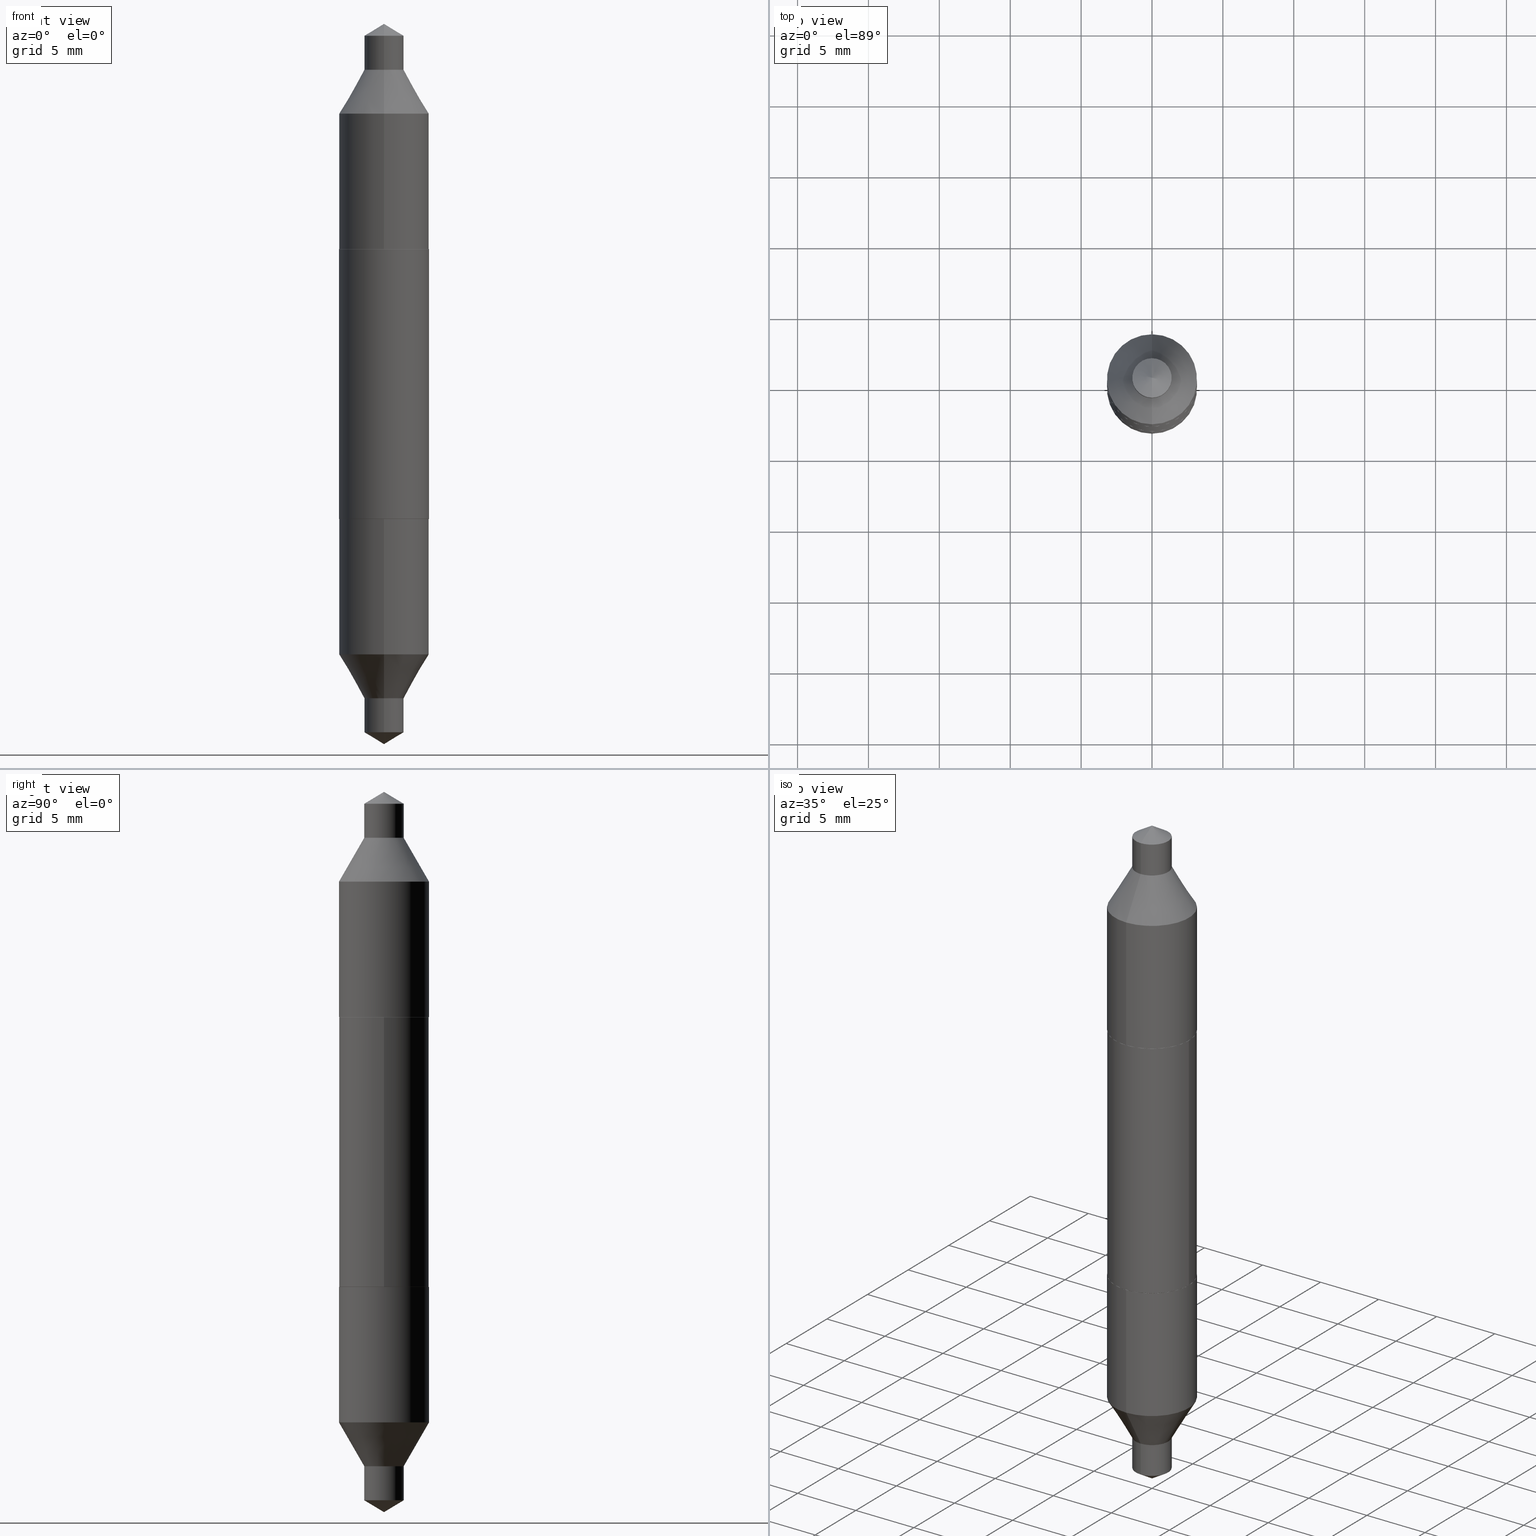
[diagram: canonical four-view strip — front | top / right | iso, engineering-drawing reading convention]
A machine part, canonical four-view strip (front | top / right | iso — engineering-drawing reading convention). The complete STEP part file that produces these views, byte-faithful:
ISO-10303-21;
HEADER;
FILE_DESCRIPTION (( 'STEP AP203' ),
    '1' );
FILE_NAME ('57009.STEP',
    '2024-04-19T15:17:24',
    ( '' ),
    ( '' ),
    'SwSTEP 2.0',
    'SolidWorks 2023',
    '' );
FILE_SCHEMA (( 'CONFIG_CONTROL_DESIGN' ));
ENDSEC;

DATA;
#1 = ORIENTED_EDGE ( 'NONE', *, *, #379, .F. ) ;
#2 = ORIENTED_EDGE ( 'NONE', *, *, #545, .F. ) ;
#3 = ADVANCED_FACE ( 'NONE', ( #700 ), #195, .T. ) ;
#4 = ORIENTED_EDGE ( 'NONE', *, *, #68, .T. ) ;
#5 = CARTESIAN_POINT ( 'NONE',  ( -2.443245373833270130E-29, 3.494665420520928324E-15, 1.000000000000000000 ) ) ;
#6 = FACE_OUTER_BOUND ( 'NONE', #276, .T. ) ;
#7 = ORIENTED_EDGE ( 'NONE', *, *, #518, .T. ) ;
#8 = CARTESIAN_POINT ( 'NONE',  ( 3.886668764607838145E-16, 0.05469999999999868717, -0.3750000000000001665 ) ) ;
#9 = ADVANCED_FACE ( 'NONE', ( #316 ), #477, .T. ) ;
#10 = VERTEX_POINT ( 'NONE', #272 ) ;
#11 = DIRECTION ( 'NONE',  ( -6.982962677686265922E-15, -1.000000000000000000, 3.535573257325071460E-15 ) ) ;
#12 = ADVANCED_FACE ( 'NONE', ( #6 ), #217, .T. ) ;
#13 = ORIENTED_EDGE ( 'NONE', *, *, #361, .F. ) ;
#14 = FACE_OUTER_BOUND ( 'NONE', #151, .T. ) ;
#15 = AXIS2_PLACEMENT_3D ( 'NONE', #144, #688, #307 ) ;
#16 = FACE_OUTER_BOUND ( 'NONE', #498, .T. ) ;
#17 = ORIENTED_EDGE ( 'NONE', *, *, #612, .T. ) ;
#18 = DIRECTION ( 'NONE',  ( -2.445468806185136597E-29, 3.491481338843145583E-15, 1.000000000000000000 ) ) ;
#19 = CARTESIAN_POINT ( 'NONE',  ( 3.886668764607960911E-16, 0.05469999999999695245, -0.8726000000000001533 ) ) ;
#20 = EDGE_CURVE ( 'NONE', #697, #322, #476, .T. ) ;
#21 = APPROVAL_STATUS ( 'not_yet_approved' ) ;
#22 = DIRECTION ( 'NONE',  ( 6.982962677686265922E-15, 1.000000000000000000, -3.478745012132013433E-15 ) ) ;
#23 = CIRCLE ( 'NONE', #514, 0.1250000000000000555 ) ;
#24 = CARTESIAN_POINT ( 'NONE',  ( -2.359827127416466351E-29, 3.384268155191049887E-15, 0.9671329241391926068 ) ) ;
#25 = AXIS2_PLACEMENT_3D ( 'NONE', #162, #264, #536 ) ;
#26 = FACE_OUTER_BOUND ( 'NONE', #651, .T. ) ;
#27 = CYLINDRICAL_SURFACE ( 'NONE', #648, 0.1250000000000000278 ) ;
#28 = DIRECTION ( 'NONE',  ( -6.982962677686266711E-15, -1.000000000000000000, 3.278217592397114284E-15 ) ) ;
#29 = CARTESIAN_POINT ( 'NONE',  ( -1.832805450914712624E-29, 2.626319554908296624E-15, 0.7508368282279060946 ) ) ;
#30 = FACE_OUTER_BOUND ( 'NONE', #426, .T. ) ;
#31 = ORGANIZATION ( 'UNSPECIFIED', 'UNSPECIFIED', '' ) ;
#32 = LINE ( 'NONE', #81, #658 ) ;
#33 = APPLICATION_CONTEXT ( 'configuration controlled 3d designs of mechanical parts and assemblies' ) ;
#34 = VECTOR ( 'NONE', #687, 39.37007874015748143 ) ;
#35 = CIRCLE ( 'NONE', #176, 0.1245000000000000689 ) ;
#36 = DIRECTION ( 'NONE',  ( -6.982962677686265922E-15, -1.000000000000000000, 3.745678236285553052E-15 ) ) ;
#37 = LOCAL_TIME ( 11, 17, 24.00000000000000000, #445 ) ;
#38 = CARTESIAN_POINT ( 'NONE',  ( -0.1245000000000000689, -4.220305688707434177E-16, -0.3749999999999999445 ) ) ;
#39 = EDGE_CURVE ( 'NONE', #586, #598, #35, .T. ) ;
#40 = EDGE_CURVE ( 'NONE', #206, #288, #543, .T. ) ;
#41 = DIRECTION ( 'NONE',  ( -2.454362535592602182E-29, 3.478745012132013039E-15, 1.000000000000000000 ) ) ;
#42 = ORIENTED_EDGE ( 'NONE', *, *, #287, .F. ) ;
#43 = VECTOR ( 'NONE', #304, 39.37007874015748143 ) ;
#44 = ORIENTED_EDGE ( 'NONE', *, *, #266, .F. ) ;
#45 = ORIENTED_EDGE ( 'NONE', *, *, #370, .F. ) ;
#46 = AXIS2_PLACEMENT_3D ( 'NONE', #511, #561, #174 ) ;
#47 = CARTESIAN_POINT ( 'NONE',  ( 1.839490633017951177E-29, -2.616745993639524273E-15, -0.7508368282279060946 ) ) ;
#48 = DIRECTION ( 'NONE',  ( -2.436575076777671012E-29, 3.504217665554278126E-15, 1.000000000000000000 ) ) ;
#49 = ORIENTED_EDGE ( 'NONE', *, *, #146, .F. ) ;
#50 = EDGE_CURVE ( 'NONE', #473, #602, #667, .T. ) ;
#51 = ORIENTED_EDGE ( 'NONE', *, *, #662, .F. ) ;
#52 = DIRECTION ( 'NONE',  ( -6.982962677686267499E-15, -1.000000000000000000, 3.468864327941580804E-15 ) ) ;
#53 = ORIENTED_EDGE ( 'NONE', *, *, #146, .T. ) ;
#54 = ORIENTED_EDGE ( 'NONE', *, *, #338, .T. ) ;
#55 = ADVANCED_FACE ( 'NONE', ( #429 ), #551, .T. ) ;
#56 = VERTEX_POINT ( 'NONE', #333 ) ;
#57 = AXIS2_PLACEMENT_3D ( 'NONE', #178, #296, #11 ) ;
#58 = APPROVAL_DATE_TIME ( #170, #500 ) ;
#59 = ORIENTED_EDGE ( 'NONE', *, *, #262, .F. ) ;
#60 = VECTOR ( 'NONE', #388, 39.37007874015748854 ) ;
#61 = DIRECTION ( 'NONE',  ( -2.454362535592602182E-29, 3.478745012132013039E-15, 1.000000000000000000 ) ) ;
#62 = VERTEX_POINT ( 'NONE', #224 ) ;
#63 = CARTESIAN_POINT ( 'NONE',  ( -8.728703347107924107E-16, -0.1249999999999986816, 0.3750000000000003886 ) ) ;
#64 = DIRECTION ( 'NONE',  ( 2.445468806185136597E-29, -3.491481338843145583E-15, -1.000000000000000000 ) ) ;
#65 = CYLINDRICAL_SURFACE ( 'NONE', #46, 0.1250000000000000278 ) ;
#66 = VERTEX_POINT ( 'NONE', #616 ) ;
#67 = DIRECTION ( 'NONE',  ( -2.436575076777670451E-29, 3.504217665554278126E-15, 1.000000000000000000 ) ) ;
#68 = EDGE_CURVE ( 'NONE', #423, #373, #638, .T. ) ;
#69 = CIRCLE ( 'NONE', #384, 0.1245000000000000689 ) ;
#70 = DIRECTION ( 'NONE',  ( -6.982962677686266711E-15, -1.000000000000000000, 3.278217592397114284E-15 ) ) ;
#71 = EDGE_CURVE ( 'NONE', #293, #602, #398, .T. ) ;
#72 = DIRECTION ( 'NONE',  ( 1.000000000000000000, -6.982962677686267499E-15, 0.000000000000000000 ) ) ;
#73 = FACE_OUTER_BOUND ( 'NONE', #173, .T. ) ;
#74 = DIRECTION ( 'NONE',  ( 0.7071067811865474617, -2.468850131082256666E-15, 0.7071067811865474617 ) ) ;
#75 = APPROVAL ( #285, 'UNSPECIFIED' ) ;
#76 = VECTOR ( 'NONE', #664, 39.37007874015748143 ) ;
#77 = DIRECTION ( 'NONE',  ( -6.982962677686265922E-15, -1.000000000000000000, 2.497118824190368833E-15 ) ) ;
#78 = CARTESIAN_POINT ( 'NONE',  ( 2.138341600030304914E-29, -3.040329020103069038E-15, -0.8726000000000000423 ) ) ;
#79 = CARTESIAN_POINT ( 'NONE',  ( 9.170508023194260837E-30, -1.309305502066179347E-15, -0.3749999999999999445 ) ) ;
#80 = AXIS2_PLACEMENT_3D ( 'NONE', #396, #564, #188 ) ;
#81 = CARTESIAN_POINT ( 'NONE',  ( -2.436633567409194491E-29, 3.504217665554278126E-15, 1.000000000000000000 ) ) ;
#82 = DATE_AND_TIME ( #512, #155 ) ;
#83 = CONICAL_SURFACE ( 'NONE', #57, 65.52281426576870160, 1.029744258676656310 ) ;
#84 = DIRECTION ( 'NONE',  ( -2.445468806185136877E-29, 3.491481338843145188E-15, 1.000000000000000000 ) ) ;
#85 = DIRECTION ( 'NONE',  ( -6.982962677686265922E-15, -1.000000000000000000, 3.535573257325071460E-15 ) ) ;
#86 = DIRECTION ( 'NONE',  ( -6.982962677686265922E-15, -1.000000000000000000, 3.745678236285553052E-15 ) ) ;
#87 = SECURITY_CLASSIFICATION_LEVEL ( 'unclassified' ) ;
#88 = ADVANCED_FACE ( 'NONE', ( #16 ), #515, .T. ) ;
#89 = CC_DESIGN_DATE_AND_TIME_ASSIGNMENT ( #297, #418, ( #241 ) ) ;
#90 = DIRECTION ( 'NONE',  ( -6.982962677686265922E-15, -1.000000000000000000, 2.497118824190368833E-15 ) ) ;
#91 = AXIS2_PLACEMENT_3D ( 'NONE', #484, #387, #52 ) ;
#92 = CARTESIAN_POINT ( 'NONE',  ( 2.454421026224126221E-29, -3.478745012132013039E-15, -1.000000000000000000 ) ) ;
#93 = ORIENTED_EDGE ( 'NONE', *, *, #248, .T. ) ;
#94 = CARTESIAN_POINT ( 'NONE',  ( 9.170508023194260837E-30, -1.309305502066179347E-15, -0.3749999999999999445 ) ) ;
#95 = CONICAL_SURFACE ( 'NONE', #578, 0.05469999999999999168, 0.5235987755982929315 ) ;
#96 = PERSON_AND_ORGANIZATION_ROLE ( 'design_supplier' ) ;
#97 = EDGE_LOOP ( 'NONE', ( #44, #377, #609, #103 ) ) ;
#98 = DIRECTION ( 'NONE',  ( 2.436575076777671012E-29, -3.504217665554278126E-15, -1.000000000000000000 ) ) ;
#99 = EDGE_CURVE ( 'NONE', #368, #486, #303, .T. ) ;
#100 = DIRECTION ( 'NONE',  ( -2.438088387897960049E-29, 3.491481338843145188E-15, 1.000000000000000000 ) ) ;
#101 = AXIS2_PLACEMENT_3D ( 'NONE', #125, #432, #556 ) ;
#102 = CLOSED_SHELL ( 'NONE', ( #55, #306, #323, #690, #519, #527, #149, #509, #3 ) ) ;
#103 = ORIENTED_EDGE ( 'NONE', *, *, #340, .F. ) ;
#104 = CYLINDRICAL_SURFACE ( 'NONE', #244, 0.05469999999999999168 ) ;
#105 = ORIENTED_EDGE ( 'NONE', *, *, #71, .T. ) ;
#106 = ORIENTED_EDGE ( 'NONE', *, *, #662, .T. ) ;
#107 = ORIENTED_EDGE ( 'NONE', *, *, #468, .F. ) ;
#108 = CARTESIAN_POINT ( 'NONE',  ( -3.819680584694172401E-16, -0.05470000000000303092, -0.8725999999999998202 ) ) ;
#109 = ORIENTED_EDGE ( 'NONE', *, *, #340, .T. ) ;
#110 = ORIENTED_EDGE ( 'NONE', *, *, #266, .T. ) ;
#111 = CARTESIAN_POINT ( 'NONE',  ( -2.359827127416466351E-29, 3.384268155191049887E-15, 0.9671329241391926068 ) ) ;
#112 = CC_DESIGN_APPROVAL ( #75, ( #585 ) ) ;
#113 = ORIENTED_EDGE ( 'NONE', *, *, #589, .F. ) ;
#114 = DIRECTION ( 'NONE',  ( -2.454362535592602182E-29, 3.478745012132013039E-15, 1.000000000000000000 ) ) ;
#115 = CARTESIAN_POINT ( 'NONE',  ( 8.575622497214323734E-16, 0.1250000000000013600, 0.3749999999999995559 ) ) ;
#116 = EDGE_LOOP ( 'NONE', ( #205, #491, #93, #274 ) ) ;
#117 = AXIS2_PLACEMENT_3D ( 'NONE', #197, #41, #481 ) ;
#118 = EDGE_CURVE ( 'NONE', #586, #281, #553, .T. ) ;
#119 = PERSON_AND_ORGANIZATION ( #537, #31 ) ;
#120 = DIRECTION ( 'NONE',  ( -2.454362535592602182E-29, 3.478745012132013039E-15, 1.000000000000000000 ) ) ;
#121 = ORIENTED_EDGE ( 'NONE', *, *, #370, .T. ) ;
#122 = LINE ( 'NONE', #358, #627 ) ;
#123 = EDGE_CURVE ( 'NONE', #373, #423, #530, .T. ) ;
#124 = PERSON_AND_ORGANIZATION ( #537, #31 ) ;
#125 = CARTESIAN_POINT ( 'NONE',  ( -9.170508023194260837E-30, 1.309305502066179347E-15, 0.3749999999999999445 ) ) ;
#126 = DIRECTION ( 'NONE',  ( -2.454362535592602182E-29, 3.478745012132013039E-15, 1.000000000000000000 ) ) ;
#127 = EDGE_LOOP ( 'NONE', ( #4, #106, #487, #492 ) ) ;
#128 = EDGE_CURVE ( 'NONE', #206, #270, #413, .T. ) ;
#129 = CARTESIAN_POINT ( 'NONE',  ( -8.728703347107652936E-16, -0.1250000000000026923, -0.7508368282279057615 ) ) ;
#130 = AXIS2_PLACEMENT_3D ( 'NONE', #29, #391, #569 ) ;
#131 = CARTESIAN_POINT ( 'NONE',  ( -0.1245000000000000689, 2.163437502788735677E-15, 0.3749999999999999445 ) ) ;
#132 = EDGE_CURVE ( 'NONE', #554, #281, #505, .T. ) ;
#133 = COORDINATED_UNIVERSAL_TIME_OFFSET ( 5, 0, .BEHIND. ) ;
#134 = CONICAL_SURFACE ( 'NONE', #101, 0.1245000000000000689, 0.7853981633974482790 ) ;
#135 = DIRECTION ( 'NONE',  ( -6.982962677686265922E-15, -1.000000000000000000, 2.497118824190368833E-15 ) ) ;
#136 = CARTESIAN_POINT ( 'NONE',  ( 8.881784197001345015E-16, 0.1249999999999987232, -0.3750000000000003886 ) ) ;
#137 = CARTESIAN_POINT ( 'NONE',  ( -2.129490560523995086E-29, 3.053004212445988016E-15, 0.8726000000000000423 ) ) ;
#138 = DIRECTION ( 'NONE',  ( -0.7071067811865474617, 7.493145998870352582E-15, 0.7071067811865474617 ) ) ;
#139 = VECTOR ( 'NONE', #138, 39.37007874015748854 ) ;
#140 = ORIENTED_EDGE ( 'NONE', *, *, #99, .F. ) ;
#141 = VERTEX_POINT ( 'NONE', #557 ) ;
#142 = CARTESIAN_POINT ( 'NONE',  ( 9.348824240373669037E-28, -1.344618838724851696E-13, -38.37007874015748143 ) ) ;
#143 = AXIS2_PLACEMENT_3D ( 'NONE', #493, #61, #508 ) ;
#144 = CARTESIAN_POINT ( 'NONE',  ( -9.170508023194260837E-30, 1.309305502066179347E-15, 0.3749999999999999445 ) ) ;
#145 = CARTESIAN_POINT ( 'NONE',  ( 2.447692238537003063E-29, -3.488297257165362447E-15, -1.000000000000000000 ) ) ;
#146 = EDGE_CURVE ( 'NONE', #141, #482, #680, .T. ) ;
#147 = DIRECTION ( 'NONE',  ( -2.454362535592602182E-29, 3.478745012132013039E-15, 1.000000000000000000 ) ) ;
#148 = ORIENTED_EDGE ( 'NONE', *, *, #283, .T. ) ;
#149 = ADVANCED_FACE ( 'NONE', ( #403 ), #83, .T. ) ;
#150 = CIRCLE ( 'NONE', #619, 0.1250000000000000555 ) ;
#151 = EDGE_LOOP ( 'NONE', ( #2, #546, #544, #395 ) ) ;
#152 = EDGE_CURVE ( 'NONE', #486, #594, #441, .T. ) ;
#153 = ORIENTED_EDGE ( 'NONE', *, *, #262, .T. ) ;
#154 = DIRECTION ( 'NONE',  ( 1.000000000000000000, -6.982962677686265922E-15, 0.000000000000000000 ) ) ;
#155 = LOCAL_TIME ( 11, 17, 24.00000000000000000, #565 ) ;
#156 = CALENDAR_DATE ( 2024, 19, 4 ) ;
#157 = ORIENTED_EDGE ( 'NONE', *, *, #152, .F. ) ;
#158 = DIRECTION ( 'NONE',  ( -1.000000000000000000, 6.982962677686265922E-15, -4.876176775795935793E-29 ) ) ;
#159 = ORIENTED_EDGE ( 'NONE', *, *, #118, .T. ) ;
#160 = CIRCLE ( 'NONE', #579, 0.05469999999999999168 ) ;
#161 = PERSON_AND_ORGANIZATION ( #537, #31 ) ;
#162 = CARTESIAN_POINT ( 'NONE',  ( -2.129490560523995086E-29, 3.053004212445988016E-15, 0.8726000000000000423 ) ) ;
#163 = ORIENTED_EDGE ( 'NONE', *, *, #239, .T. ) ;
#164 = CALENDAR_DATE ( 2024, 19, 4 ) ;
#165 = ORIENTED_EDGE ( 'NONE', *, *, #231, .T. ) ;
#166 = DIRECTION ( 'NONE',  ( 2.454362535592601621E-29, -3.478745012132013433E-15, -1.000000000000000000 ) ) ;
#167 = DIRECTION ( 'NONE',  ( -6.982962677686265922E-15, -1.000000000000000000, 3.278217592397115862E-15 ) ) ;
#168 = ORIENTED_EDGE ( 'NONE', *, *, #50, .F. ) ;
#169 = AXIS2_PLACEMENT_3D ( 'NONE', #226, #610, #444 ) ;
#170 = DATE_AND_TIME ( #164, #37 ) ;
#171 = LINE ( 'NONE', #108, #76 ) ;
#172 = CARTESIAN_POINT ( 'NONE',  ( -3.819680584694599372E-16, -0.05469999999999693163, 0.8726000000000001533 ) ) ;
#173 = EDGE_LOOP ( 'NONE', ( #51, #438, #7, #434 ) ) ;
#174 = DIRECTION ( 'NONE',  ( -6.982962677686265922E-15, -1.000000000000000000, 3.278217592397115073E-15 ) ) ;
#175 = AXIS2_PLACEMENT_3D ( 'NONE', #305, #520, #193 ) ;
#176 = AXIS2_PLACEMENT_3D ( 'NONE', #324, #642, #154 ) ;
#177 = DIRECTION ( 'NONE',  ( -6.982962677686267499E-15, -1.000000000000000000, 3.468864327941580804E-15 ) ) ;
#178 = CARTESIAN_POINT ( 'NONE',  ( 9.348824240373669037E-28, -1.344618838724851696E-13, -38.37007874015748143 ) ) ;
#179 = ORIENTED_EDGE ( 'NONE', *, *, #650, .T. ) ;
#180 = DIRECTION ( 'NONE',  ( 1.000000000000000000, -6.982962677686265922E-15, 4.876176775795935232E-29 ) ) ;
#181 = EDGE_CURVE ( 'NONE', #288, #10, #637, .T. ) ;
#182 = DIRECTION ( 'NONE',  ( -6.982962677686265922E-15, -1.000000000000000000, 3.278217592397115073E-15 ) ) ;
#183 = MANIFOLD_SOLID_BREP ( 'Body-Move/Copy2[3]', #291 ) ;
#184 = CARTESIAN_POINT ( 'NONE',  ( 2.138341600030304914E-29, -3.040329020103069038E-15, -0.8726000000000000423 ) ) ;
#185 = MANIFOLD_SOLID_BREP ( 'Body-Move/Copy2[2]', #102 ) ;
#186 = PLANE ( 'NONE',  #295 ) ;
#187 = DIRECTION ( 'NONE',  ( 2.436575076777671012E-29, -3.504217665554278126E-15, -1.000000000000000000 ) ) ;
#188 = DIRECTION ( 'NONE',  ( -6.982962677686265922E-15, -1.000000000000000000, 3.278217592397115862E-15 ) ) ;
#189 = CYLINDRICAL_SURFACE ( 'NONE', #15, 0.1250000000000000278 ) ;
#190 = CARTESIAN_POINT ( 'NONE',  ( 0.1245000000000000689, -2.178684355438120073E-15, -0.3749999999999999445 ) ) ;
#191 = ADVANCED_FACE ( 'NONE', ( #30 ), #186, .T. ) ;
#192 = CYLINDRICAL_SURFACE ( 'NONE', #210, 0.05469999999999999168 ) ;
#193 = DIRECTION ( 'NONE',  ( -6.982962677686265922E-15, -1.000000000000000000, 3.278217592397115862E-15 ) ) ;
#194 = AXIS2_PLACEMENT_3D ( 'NONE', #111, #327, #279 ) ;
#195 = CONICAL_SURFACE ( 'NONE', #25, 0.05469999999999999168, 0.5235987755982929315 ) ;
#196 =( LENGTH_UNIT ( ) NAMED_UNIT ( * ) SI_UNIT ( $, .METRE. ) );
#197 = CARTESIAN_POINT ( 'NONE',  ( 9.170508023194260837E-30, -1.309305502066179347E-15, -0.3749999999999999445 ) ) ;
#198 = DIRECTION ( 'NONE',  ( -2.454362535592602182E-29, 3.478745012132013039E-15, 1.000000000000000000 ) ) ;
#199 = CC_DESIGN_SECURITY_CLASSIFICATION ( #241, ( #585 ) ) ;
#200 = ORIENTED_EDGE ( 'NONE', *, *, #283, .F. ) ;
#201 = CARTESIAN_POINT ( 'NONE',  ( -3.819680584694478085E-16, -0.05469999999999868717, 0.3750000000000001665 ) ) ;
#202 = AXIS2_PLACEMENT_3D ( 'NONE', #234, #166, #22 ) ;
#203 = AXIS2_PLACEMENT_3D ( 'NONE', #581, #48, #209 ) ;
#204 = ADVANCED_FACE ( 'NONE', ( #286 ), #27, .T. ) ;
#205 = ORIENTED_EDGE ( 'NONE', *, *, #40, .F. ) ;
#206 = VERTEX_POINT ( 'NONE', #446 ) ;
#207 = PERSON_AND_ORGANIZATION_ROLE ( 'creator' ) ;
#208 = EDGE_LOOP ( 'NONE', ( #582, #371 ) ) ;
#209 = DIRECTION ( 'NONE',  ( -6.982962677686265922E-15, -1.000000000000000000, 3.278217592397115862E-15 ) ) ;
#210 = AXIS2_PLACEMENT_3D ( 'NONE', #685, #632, #86 ) ;
#211 = ORIENTED_EDGE ( 'NONE', *, *, #118, .F. ) ;
#212 = PERSON_AND_ORGANIZATION ( #537, #31 ) ;
#213 = ORIENTED_EDGE ( 'NONE', *, *, #231, .F. ) ;
#214 = CLOSED_SHELL ( 'NONE', ( #559, #12, #478, #366, #204, #443, #465, #686, #575 ) ) ;
#215 = DIRECTION ( 'NONE',  ( -5.985567269335924713E-15, -0.8571673007021151092, -0.5150380749100497146 ) ) ;
#216 = EDGE_CURVE ( 'NONE', #419, #66, #458, .T. ) ;
#217 = CYLINDRICAL_SURFACE ( 'NONE', #459, 0.05469999999999999168 ) ;
#218 = ORIENTED_EDGE ( 'NONE', *, *, #315, .F. ) ;
#219 = AXIS2_PLACEMENT_3D ( 'NONE', #618, #126, #167 ) ;
#220 = ORIENTED_EDGE ( 'NONE', *, *, #468, .T. ) ;
#221 = DIRECTION ( 'NONE',  ( -2.454362535592602182E-29, 3.478745012132013433E-15, 1.000000000000000000 ) ) ;
#222 = ORIENTED_EDGE ( 'NONE', *, *, #699, .T. ) ;
#223 = PERSON_AND_ORGANIZATION_ROLE ( 'design_owner' ) ;
#224 = CARTESIAN_POINT ( 'NONE',  ( -2.436575076777671012E-29, 3.504217665554278126E-15, 1.000000000000000000 ) ) ;
#225 = EDGE_LOOP ( 'NONE', ( #356, #220, #53 ) ) ;
#226 = CARTESIAN_POINT ( 'NONE',  ( 9.170508023194260837E-30, -1.309305502066179347E-15, -0.3749999999999999445 ) ) ;
#227 = DIRECTION ( 'NONE',  ( -2.436575076777671012E-29, 3.504217665554278126E-15, 1.000000000000000000 ) ) ;
#228 = CARTESIAN_POINT ( 'NONE',  ( -9.170508023194260837E-30, 1.309305502066179347E-15, 0.3749999999999999445 ) ) ;
#229 = ORIENTED_EDGE ( 'NONE', *, *, #39, .F. ) ;
#230 = DIRECTION ( 'NONE',  ( -2.454362535592602182E-29, 3.478745012132013433E-15, 1.000000000000000000 ) ) ;
#231 = EDGE_CURVE ( 'NONE', #270, #206, #591, .T. ) ;
#232 = VECTOR ( 'NONE', #215, 39.37007874015748854 ) ;
#233 = AXIS2_PLACEMENT_3D ( 'NONE', #655, #501, #601 ) ;
#234 = CARTESIAN_POINT ( 'NONE',  ( 9.170508023194260837E-30, -1.309305502066179347E-15, -0.3749999999999999445 ) ) ;
#235 = DIRECTION ( 'NONE',  ( -2.454362535592602182E-29, 3.478745012132013039E-15, 1.000000000000000000 ) ) ;
#236 = CARTESIAN_POINT ( 'NONE',  ( 3.752692404780813821E-16, 0.05470000000000304480, 0.8725999999999998202 ) ) ;
#237 = CARTESIAN_POINT ( 'NONE',  ( -0.1250000000000000555, 8.881784197001251337E-16, 0.3744999999999999996 ) ) ;
#238 = DIRECTION ( 'NONE',  ( -2.454362535592602182E-29, 3.478745012132013039E-15, 1.000000000000000000 ) ) ;
#239 = EDGE_CURVE ( 'NONE', #598, #554, #344, .T. ) ;
#240 = CARTESIAN_POINT ( 'NONE',  ( -8.728703347108020743E-16, -0.1249999999999974326, 0.7508368282279065387 ) ) ;
#241 = SECURITY_CLASSIFICATION ( '', '', #87 ) ;
#242 = CARTESIAN_POINT ( 'NONE',  ( 2.370359667417556820E-29, -3.369184958434539402E-15, -0.9671329241391926068 ) ) ;
#243 = DIRECTION ( 'NONE',  ( 1.000000000000000000, -6.982962677686265922E-15, 0.000000000000000000 ) ) ;
#244 = AXIS2_PLACEMENT_3D ( 'NONE', #321, #535, #649 ) ;
#245 = AXIS2_PLACEMENT_3D ( 'NONE', #24, #282, #77 ) ;
#246 = CARTESIAN_POINT ( 'NONE',  ( -3.819680584694295168E-16, -0.05470000000000129620, -0.3749999999999997780 ) ) ;
#247 = FACE_OUTER_BOUND ( 'NONE', #328, .T. ) ;
#248 = EDGE_CURVE ( 'NONE', #270, #10, #249, .T. ) ;
#249 = LINE ( 'NONE', #246, #605 ) ;
#250 = DIRECTION ( 'NONE',  ( -2.445468806185136597E-29, 3.491481338843145583E-15, 1.000000000000000000 ) ) ;
#251 = LINE ( 'NONE', #682, #43 ) ;
#252 = CIRCLE ( 'NONE', #80, 0.1250000000000000000 ) ;
#253 = CC_DESIGN_PERSON_AND_ORGANIZATION_ASSIGNMENT ( #472, #696, ( #585 ) ) ;
#254 = FACE_OUTER_BOUND ( 'NONE', #532, .T. ) ;
#255 = FACE_OUTER_BOUND ( 'NONE', #381, .T. ) ;
#256 = CIRCLE ( 'NONE', #194, 0.05469999999999999168 ) ;
#257 = DESIGN_CONTEXT ( 'detailed design', #351, 'design' ) ;
#258 = DIRECTION ( 'NONE',  ( 0.000000000000000000, 0.000000000000000000, 1.000000000000000000 ) ) ;
#259 = APPROVAL_DATE_TIME ( #312, #75 ) ;
#260 = LINE ( 'NONE', #201, #524 ) ;
#261 = APPROVAL_PERSON_ORGANIZATION ( #623, #400, #570 ) ;
#262 = EDGE_CURVE ( 'NONE', #482, #141, #256, .T. ) ;
#263 = ORIENTED_EDGE ( 'NONE', *, *, #457, .F. ) ;
#264 = DIRECTION ( 'NONE',  ( 2.436575076777671012E-29, -3.504217665554278126E-15, -1.000000000000000000 ) ) ;
#265 = AXIS2_PLACEMENT_3D ( 'NONE', #94, #268, #436 ) ;
#266 = EDGE_CURVE ( 'NONE', #288, #320, #353, .T. ) ;
#267 = DIRECTION ( 'NONE',  ( 6.090539988449787113E-15, 0.8571673007021151092, 0.5150380749100497146 ) ) ;
#268 = DIRECTION ( 'NONE',  ( -2.445468806185136597E-29, 3.491481338843145583E-15, 1.000000000000000000 ) ) ;
#269 = ORIENTED_EDGE ( 'NONE', *, *, #338, .F. ) ;
#270 = VERTEX_POINT ( 'NONE', #626 ) ;
#271 = FACE_OUTER_BOUND ( 'NONE', #208, .T. ) ;
#272 = CARTESIAN_POINT ( 'NONE',  ( -3.819680584694172401E-16, -0.05470000000000303092, -0.8725999999999998202 ) ) ;
#273 = AXIS2_PLACEMENT_3D ( 'NONE', #681, #18, #180 ) ;
#274 = ORIENTED_EDGE ( 'NONE', *, *, #181, .F. ) ;
#275 = VERTEX_POINT ( 'NONE', #129 ) ;
#276 = EDGE_LOOP ( 'NONE', ( #165, #489, #13, #540 ) ) ;
#277 = AXIS2_PLACEMENT_3D ( 'NONE', #407, #187, #36 ) ;
#278 = AXIS2_PLACEMENT_3D ( 'NONE', #529, #644, #314 ) ;
#279 = DIRECTION ( 'NONE',  ( -6.982962677686265922E-15, -1.000000000000000000, 2.497118824190368833E-15 ) ) ;
#280 = EDGE_CURVE ( 'NONE', #322, #423, #349, .T. ) ;
#281 = VERTEX_POINT ( 'NONE', #237 ) ;
#282 = DIRECTION ( 'NONE',  ( -2.436575076777671012E-29, 3.504217665554278126E-15, 1.000000000000000000 ) ) ;
#283 = EDGE_CURVE ( 'NONE', #486, #368, #160, .T. ) ;
#284 = ORIENTED_EDGE ( 'NONE', *, *, #287, .T. ) ;
#285 = APPROVAL_STATUS ( 'not_yet_approved' ) ;
#286 = FACE_OUTER_BOUND ( 'NONE', #653, .T. ) ;
#287 = EDGE_CURVE ( 'NONE', #275, #320, #372, .T. ) ;
#288 = VERTEX_POINT ( 'NONE', #572 ) ;
#289 = CONICAL_SURFACE ( 'NONE', #169, 0.1245000000000000689, 0.7853981633974482790 ) ;
#290 = CYLINDRICAL_SURFACE ( 'NONE', #273, 0.1250000000000000278 ) ;
#291 = CLOSED_SHELL ( 'NONE', ( #488, #397, #313, #191, #657, #533, #9, #88 ) ) ;
#292 = CARTESIAN_POINT ( 'NONE',  ( 9.170508023194260837E-30, -1.309305502066179347E-15, -0.3749999999999999445 ) ) ;
#293 = VERTEX_POINT ( 'NONE', #516 ) ;
#294 = DIRECTION ( 'NONE',  ( -2.454362535592602182E-29, 3.478745012132013039E-15, 1.000000000000000000 ) ) ;
#295 = AXIS2_PLACEMENT_3D ( 'NONE', #292, #672, #613 ) ;
#296 = DIRECTION ( 'NONE',  ( 2.436575076777671012E-29, -3.504217665554278126E-15, -1.000000000000000000 ) ) ;
#297 = DATE_AND_TIME ( #406, #399 ) ;
#298 = DIRECTION ( 'NONE',  ( 1.000000000000000000, -6.982962677686267499E-15, 0.000000000000000000 ) ) ;
#299 = DIRECTION ( 'NONE',  ( -2.454362535592602182E-29, 3.478745012132013433E-15, 1.000000000000000000 ) ) ;
#300 = VECTOR ( 'NONE', #299, 39.37007874015748143 ) ;
#301 = SHAPE_DEFINITION_REPRESENTATION ( #408, #376 ) ;
#302 = AXIS2_PLACEMENT_3D ( 'NONE', #461, #250, #359 ) ;
#303 = CIRCLE ( 'NONE', #233, 0.05469999999999999168 ) ;
#304 = DIRECTION ( 'NONE',  ( 2.436575076777671012E-29, -3.504217665554278126E-15, -1.000000000000000000 ) ) ;
#305 = CARTESIAN_POINT ( 'NONE',  ( -9.170508023194260837E-30, 1.309305502066179347E-15, 0.3749999999999999445 ) ) ;
#306 = ADVANCED_FACE ( 'NONE', ( #247 ), #414, .T. ) ;
#307 = DIRECTION ( 'NONE',  ( -6.982962677686265922E-15, -1.000000000000000000, 3.278217592397115073E-15 ) ) ;
#308 = CARTESIAN_POINT ( 'NONE',  ( -0.1250000000000000278, -4.193813416966324631E-16, -0.3744999999999999996 ) ) ;
#309 =( NAMED_UNIT ( * ) SI_UNIT ( $, .STERADIAN. ) SOLID_ANGLE_UNIT ( ) );
#310 = CARTESIAN_POINT ( 'NONE',  ( 8.881784197001435734E-16, 0.1249999999999986816, -0.3750000000000003886 ) ) ;
#311 = ORIENTED_EDGE ( 'NONE', *, *, #571, .F. ) ;
#312 = DATE_AND_TIME ( #156, #558 ) ;
#313 = ADVANCED_FACE ( 'NONE', ( #624 ), #467, .T. ) ;
#314 = DIRECTION ( 'NONE',  ( 1.000000000000000000, -6.982962677686265922E-15, 4.876176775795935232E-29 ) ) ;
#315 = EDGE_CURVE ( 'NONE', #56, #270, #463, .T. ) ;
#316 = FACE_OUTER_BOUND ( 'NONE', #447, .T. ) ;
#317 = AXIS2_PLACEMENT_3D ( 'NONE', #142, #576, #85 ) ;
#318 = VECTOR ( 'NONE', #506, 39.37007874015748854 ) ;
#319 = ORIENTED_EDGE ( 'NONE', *, *, #68, .F. ) ;
#320 = VERTEX_POINT ( 'NONE', #683 ) ;
#321 = CARTESIAN_POINT ( 'NONE',  ( -9.170508023194260837E-30, 1.309305502066179347E-15, 0.3749999999999999445 ) ) ;
#322 = VERTEX_POINT ( 'NONE', #190 ) ;
#323 = ADVANCED_FACE ( 'NONE', ( #630 ), #331, .T. ) ;
#324 = CARTESIAN_POINT ( 'NONE',  ( -9.170508023194260837E-30, 1.309305502066179347E-15, 0.3749999999999999445 ) ) ;
#325 = CIRCLE ( 'NONE', #455, 0.1245000000000000689 ) ;
#326 = ORIENTED_EDGE ( 'NONE', *, *, #280, .F. ) ;
#327 = DIRECTION ( 'NONE',  ( -2.436575076777671012E-29, 3.504217665554278126E-15, 1.000000000000000000 ) ) ;
#328 = EDGE_LOOP ( 'NONE', ( #59, #121, #430, #552 ) ) ;
#329 = DIRECTION ( 'NONE',  ( 1.000000000000000000, -6.982962677686265922E-15, 0.000000000000000000 ) ) ;
#330 = ORIENTED_EDGE ( 'NONE', *, *, #542, .F. ) ;
#331 = CONICAL_SURFACE ( 'NONE', #317, 65.52281426576870160, 1.029744258676656310 ) ;
#332 = AXIS2_PLACEMENT_3D ( 'NONE', #228, #64, #329 ) ;
#333 = CARTESIAN_POINT ( 'NONE',  ( 2.454362535592602182E-29, -3.478745012132013039E-15, -1.000000000000000000 ) ) ;
#334 = ORIENTED_EDGE ( 'NONE', *, *, #437, .F. ) ;
#335 = LINE ( 'NONE', #401, #139 ) ;
#336 = DIRECTION ( 'NONE',  ( 2.436575076777671012E-29, -3.504217665554278126E-15, -1.000000000000000000 ) ) ;
#337 = ORIENTED_EDGE ( 'NONE', *, *, #635, .F. ) ;
#338 = EDGE_CURVE ( 'NONE', #602, #473, #580, .T. ) ;
#339 = CARTESIAN_POINT ( 'NONE',  ( -9.158280679163337026E-30, 1.307559761396758041E-15, 0.3744999999999999996 ) ) ;
#340 = EDGE_CURVE ( 'NONE', #320, #275, #150, .T. ) ;
#341 = CARTESIAN_POINT ( 'NONE',  ( -9.170508023194260837E-30, 1.309305502066179347E-15, 0.3749999999999999445 ) ) ;
#342 = CONICAL_SURFACE ( 'NONE', #665, 65.52281426576868739, 1.029744258676656310 ) ;
#343 = DIMENSIONAL_EXPONENTS ( 1.000000000000000000, 0.000000000000000000, 0.000000000000000000, 0.000000000000000000, 0.000000000000000000, 0.000000000000000000, 0.000000000000000000 ) ;
#344 = LINE ( 'NONE', #566, #563 ) ;
#345 = DIRECTION ( 'NONE',  ( -2.445468806185136597E-29, 3.491481338843145583E-15, 1.000000000000000000 ) ) ;
#346 = DIRECTION ( 'NONE',  ( -2.436575076777671012E-29, 3.504217665554278126E-15, 1.000000000000000000 ) ) ;
#347 = CARTESIAN_POINT ( 'NONE',  ( 1.839490633017951177E-29, -2.616745993639524273E-15, -0.7508368282279060946 ) ) ;
#348 = DIRECTION ( 'NONE',  ( -2.454362535592602182E-29, 3.478745012132013039E-15, 1.000000000000000000 ) ) ;
#349 = LINE ( 'NONE', #621, #689 ) ;
#350 = AXIS2_PLACEMENT_3D ( 'NONE', #411, #464, #577 ) ;
#351 = APPLICATION_CONTEXT ( 'configuration controlled 3d designs of mechanical parts and assemblies' ) ;
#352 = DIRECTION ( 'NONE',  ( 1.000000000000000000, -6.982962677686265922E-15, 0.000000000000000000 ) ) ;
#353 = LINE ( 'NONE', #19, #695 ) ;
#354 = AXIS2_PLACEMENT_3D ( 'NONE', #341, #67, #409 ) ;
#355 = VECTOR ( 'NONE', #221, 39.37007874015748143 ) ;
#356 = ORIENTED_EDGE ( 'NONE', *, *, #650, .F. ) ;
#357 = DIRECTION ( 'NONE',  ( -2.454362535592602182E-29, 3.478745012132013039E-15, 1.000000000000000000 ) ) ;
#358 = CARTESIAN_POINT ( 'NONE',  ( -0.1250000000000000278, 8.881784197001254296E-16, -6.148668862818633629E-30 ) ) ;
#359 = DIRECTION ( 'NONE',  ( 1.000000000000000000, -6.982962677686265922E-15, 0.000000000000000000 ) ) ;
#360 = DIRECTION ( 'NONE',  ( 0.7071067811865474617, -7.406550393246804314E-15, -0.7071067811865474617 ) ) ;
#361 = EDGE_CURVE ( 'NONE', #10, #288, #420, .T. ) ;
#362 = CARTESIAN_POINT ( 'NONE',  ( 0.000000000000000000, 0.000000000000000000, 0.000000000000000000 ) ) ;
#363 = CC_DESIGN_PERSON_AND_ORGANIZATION_ASSIGNMENT ( #416, #634, ( #241 ) ) ;
#364 = CARTESIAN_POINT ( 'NONE',  ( 3.752692404780801988E-16, 0.05470000000000304480, 0.8725999999999998202 ) ) ;
#365 = AXIS2_PLACEMENT_3D ( 'NONE', #383, #675, #72 ) ;
#366 = ADVANCED_FACE ( 'NONE', ( #255 ), #587, .T. ) ;
#367 = ORIENTED_EDGE ( 'NONE', *, *, #571, .T. ) ;
#368 = VERTEX_POINT ( 'NONE', #364 ) ;
#369 = ORIENTED_EDGE ( 'NONE', *, *, #425, .T. ) ;
#370 = EDGE_CURVE ( 'NONE', #482, #368, #475, .T. ) ;
#371 = ORIENTED_EDGE ( 'NONE', *, *, #216, .T. ) ;
#372 = CIRCLE ( 'NONE', #679, 0.1250000000000000555 ) ;
#373 = VERTEX_POINT ( 'NONE', #308 ) ;
#374 = ORIENTED_EDGE ( 'NONE', *, *, #20, .F. ) ;
#375 = LINE ( 'NONE', #596, #490 ) ;
#376 = ADVANCED_BREP_SHAPE_REPRESENTATION ( '57009', ( #412, #185, #183, #691 ), #410 ) ;
#377 = ORIENTED_EDGE ( 'NONE', *, *, #181, .T. ) ;
#378 = EDGE_LOOP ( 'NONE', ( #311, #200, #480, #656 ) ) ;
#379 = EDGE_CURVE ( 'NONE', #56, #206, #421, .T. ) ;
#380 = COORDINATED_UNIVERSAL_TIME_OFFSET ( 5, 0, .BEHIND. ) ;
#381 = EDGE_LOOP ( 'NONE', ( #284, #646, #330, #661 ) ) ;
#382 = CARTESIAN_POINT ( 'NONE',  ( -9.417741889610851748E-28, 1.334749439099187532E-13, 38.37007874015748143 ) ) ;
#383 = CARTESIAN_POINT ( 'NONE',  ( 9.158280679163337026E-30, -1.307559761396758041E-15, -0.3744999999999999996 ) ) ;
#384 = AXIS2_PLACEMENT_3D ( 'NONE', #517, #521, #352 ) ;
#385 = ORIENTED_EDGE ( 'NONE', *, *, #216, .F. ) ;
#386 = DATE_AND_TIME ( #440, #522 ) ;
#387 = DIRECTION ( 'NONE',  ( -2.454362535592602182E-29, 3.478745012132013039E-15, 1.000000000000000000 ) ) ;
#388 = DIRECTION ( 'NONE',  ( -3.491481338843076163E-15, -0.4999999999999979461, -0.8660254037844399289 ) ) ;
#389 = ORIENTED_EDGE ( 'NONE', *, *, #699, .F. ) ;
#390 = AXIS2_PLACEMENT_3D ( 'NONE', #606, #120, #394 ) ;
#391 = DIRECTION ( 'NONE',  ( -2.436575076777671012E-29, 3.504217665554278126E-15, 1.000000000000000000 ) ) ;
#392 = AXIS2_PLACEMENT_3D ( 'NONE', #666, #660, #135 ) ;
#393 = CARTESIAN_POINT ( 'NONE',  ( -3.819680584694599372E-16, -0.05469999999999693163, 0.8726000000000001533 ) ) ;
#394 = DIRECTION ( 'NONE',  ( -6.982962677686265922E-15, -1.000000000000000000, 2.497118824190368833E-15 ) ) ;
#395 = ORIENTED_EDGE ( 'NONE', *, *, #123, .F. ) ;
#396 = CARTESIAN_POINT ( 'NONE',  ( 9.170508023194260837E-30, -1.309305502066179347E-15, -0.3749999999999999445 ) ) ;
#397 = ADVANCED_FACE ( 'NONE', ( #427 ), #583, .T. ) ;
#398 = LINE ( 'NONE', #115, #608 ) ;
#399 = LOCAL_TIME ( 11, 17, 24.00000000000000000, #133 ) ;
#400 = APPROVAL ( #21, 'UNSPECIFIED' ) ;
#401 = CARTESIAN_POINT ( 'NONE',  ( -0.1245000000000000689, -4.246797960448542243E-16, -0.3749999999999999445 ) ) ;
#402 = PRODUCT ( '57009', '57009', '', ( #693 ) ) ;
#403 = FACE_OUTER_BOUND ( 'NONE', #225, .T. ) ;
#404 = PLANE ( 'NONE',  #354 ) ;
#405 = AXIS2_PLACEMENT_3D ( 'NONE', #417, #147, #90 ) ;
#406 = CALENDAR_DATE ( 2024, 19, 4 ) ;
#407 = CARTESIAN_POINT ( 'NONE',  ( -9.170508023194260837E-30, 1.309305502066179347E-15, 0.3749999999999999445 ) ) ;
#408 = PRODUCT_DEFINITION_SHAPE ( 'NONE', 'NONE',  #567 ) ;
#409 = DIRECTION ( 'NONE',  ( 6.982962677686265922E-15, 1.000000000000000000, -3.504217665554278126E-15 ) ) ;
#410 =( GEOMETRIC_REPRESENTATION_CONTEXT ( 3 ) GLOBAL_UNCERTAINTY_ASSIGNED_CONTEXT ( ( #526 ) ) GLOBAL_UNIT_ASSIGNED_CONTEXT ( ( #628, #513, #309 ) ) REPRESENTATION_CONTEXT ( 'NONE', 'WORKASPACE' ) );
#411 = CARTESIAN_POINT ( 'NONE',  ( -9.158280679163337026E-30, 1.307559761396758041E-15, 0.3744999999999999996 ) ) ;
#412 = MANIFOLD_SOLID_BREP ( 'Body-Move/Copy2[1]', #214 ) ;
#413 = CIRCLE ( 'NONE', #143, 0.05469999999999999168 ) ;
#414 = CYLINDRICAL_SURFACE ( 'NONE', #277, 0.05469999999999999168 ) ;
#415 = APPLICATION_PROTOCOL_DEFINITION ( 'international standard', 'config_control_design', 1994, #33 ) ;
#416 = PERSON_AND_ORGANIZATION ( #537, #31 ) ;
#417 = CARTESIAN_POINT ( 'NONE',  ( 2.138341600030304914E-29, -3.040329020103069038E-15, -0.8726000000000000423 ) ) ;
#418 = DATE_TIME_ROLE ( 'classification_date' ) ;
#419 = VERTEX_POINT ( 'NONE', #310 ) ;
#420 = CIRCLE ( 'NONE', #405, 0.05469999999999999168 ) ;
#421 = LINE ( 'NONE', #92, #548 ) ;
#422 = AXIS2_PLACEMENT_3D ( 'NONE', #584, #100, #158 ) ;
#423 = VERTEX_POINT ( 'NONE', #525 ) ;
#424 = DIRECTION ( 'NONE',  ( 2.436575076777671012E-29, -3.504217665554278126E-15, -1.000000000000000000 ) ) ;
#425 = EDGE_CURVE ( 'NONE', #141, #486, #260, .T. ) ;
#426 = EDGE_LOOP ( 'NONE', ( #337, #374 ) ) ;
#427 = FACE_OUTER_BOUND ( 'NONE', #127, .T. ) ;
#428 = VECTOR ( 'NONE', #230, 39.37007874015748143 ) ;
#429 = FACE_OUTER_BOUND ( 'NONE', #641, .T. ) ;
#430 = ORIENTED_EDGE ( 'NONE', *, *, #99, .T. ) ;
#431 = ORIENTED_EDGE ( 'NONE', *, *, #694, .F. ) ;
#432 = DIRECTION ( 'NONE',  ( 2.445468806185136597E-29, -3.491481338843145583E-15, -1.000000000000000000 ) ) ;
#433 = CARTESIAN_POINT ( 'NONE',  ( 9.170508023194260837E-30, -1.309305502066179347E-15, -0.3749999999999999445 ) ) ;
#434 = ORIENTED_EDGE ( 'NONE', *, *, #673, .F. ) ;
#435 = EDGE_LOOP ( 'NONE', ( #1, #599, #643 ) ) ;
#436 = DIRECTION ( 'NONE',  ( 1.000000000000000000, -6.982962677686265922E-15, 0.000000000000000000 ) ) ;
#437 = EDGE_CURVE ( 'NONE', #293, #594, #23, .T. ) ;
#438 = ORIENTED_EDGE ( 'NONE', *, *, #123, .T. ) ;
#439 = CC_DESIGN_PERSON_AND_ORGANIZATION_ASSIGNMENT ( #640, #96, ( #585 ) ) ;
#440 = CALENDAR_DATE ( 2024, 19, 4 ) ;
#441 = LINE ( 'NONE', #172, #60 ) ;
#442 = ORIENTED_EDGE ( 'NONE', *, *, #379, .T. ) ;
#443 = ADVANCED_FACE ( 'NONE', ( #271 ), #654, .F. ) ;
#444 = DIRECTION ( 'NONE',  ( 1.000000000000000000, -6.982962677686265922E-15, 0.000000000000000000 ) ) ;
#445 = COORDINATED_UNIVERSAL_TIME_OFFSET ( 5, 0, .BEHIND. ) ;
#446 = CARTESIAN_POINT ( 'NONE',  ( 3.886668764607983591E-16, 0.05469999999999661244, -0.9671329241391927178 ) ) ;
#447 = EDGE_LOOP ( 'NONE', ( #595, #534 ) ) ;
#448 = CARTESIAN_POINT ( 'NONE',  ( 9.170508023194260837E-30, -1.309305502066179347E-15, -0.3749999999999999445 ) ) ;
#449 = AXIS2_PLACEMENT_3D ( 'NONE', #549, #496, #298 ) ;
#450 = FACE_OUTER_BOUND ( 'NONE', #435, .T. ) ;
#451 = DIRECTION ( 'NONE',  ( 1.000000000000000000, -6.982962677686267499E-15, 0.000000000000000000 ) ) ;
#452 = CC_DESIGN_PERSON_AND_ORGANIZATION_ASSIGNMENT ( #124, #207, ( #567 ) ) ;
#453 = DIRECTION ( 'NONE',  ( 3.430248998885750398E-15, 0.4999999999999917843, -0.8660254037844432595 ) ) ;
#454 = DIRECTION ( 'NONE',  ( -6.982962677686265922E-15, -1.000000000000000000, 2.497118824190368833E-15 ) ) ;
#455 = AXIS2_PLACEMENT_3D ( 'NONE', #448, #345, #243 ) ;
#456 = CARTESIAN_POINT ( 'NONE',  ( 8.575622497214277388E-16, 0.1250000000000013045, 0.3749999999999995559 ) ) ;
#457 = EDGE_CURVE ( 'NONE', #10, #275, #171, .T. ) ;
#458 = CIRCLE ( 'NONE', #219, 0.1250000000000000000 ) ;
#459 = AXIS2_PLACEMENT_3D ( 'NONE', #433, #645, #531 ) ;
#460 = DIRECTION ( 'NONE',  ( -2.454362535592602182E-29, 3.478745012132013433E-15, 1.000000000000000000 ) ) ;
#461 = CARTESIAN_POINT ( 'NONE',  ( 9.170508023194260837E-30, -1.309305502066179347E-15, -0.3749999999999999445 ) ) ;
#462 = FACE_OUTER_BOUND ( 'NONE', #116, .T. ) ;
#463 = LINE ( 'NONE', #145, #34 ) ;
#464 = DIRECTION ( 'NONE',  ( -2.445468806185136597E-29, 3.491481338843145583E-15, 1.000000000000000000 ) ) ;
#465 = ADVANCED_FACE ( 'NONE', ( #450 ), #474, .T. ) ;
#466 = DIRECTION ( 'NONE',  ( -6.982962677686265922E-15, -1.000000000000000000, 2.497118824190368833E-15 ) ) ;
#467 = CONICAL_SURFACE ( 'NONE', #302, 0.1245000000000000689, 0.7853981633974482790 ) ;
#468 = EDGE_CURVE ( 'NONE', #62, #141, #604, .T. ) ;
#469 = DIRECTION ( 'NONE',  ( 1.000000000000000000, 0.000000000000000000, 0.000000000000000000 ) ) ;
#470 = CONICAL_SURFACE ( 'NONE', #636, 0.05469999999999999168, 0.5235987755982929315 ) ;
#471 = EDGE_LOOP ( 'NONE', ( #502, #593, #319, #326 ) ) ;
#472 = PERSON_AND_ORGANIZATION ( #537, #31 ) ;
#473 = VERTEX_POINT ( 'NONE', #63 ) ;
#474 = CONICAL_SURFACE ( 'NONE', #91, 65.52281426576868739, 1.029744258676656310 ) ;
#475 = LINE ( 'NONE', #698, #574 ) ;
#476 = CIRCLE ( 'NONE', #265, 0.1245000000000000689 ) ;
#477 = PLANE ( 'NONE',  #422 ) ;
#478 = ADVANCED_FACE ( 'NONE', ( #671 ), #342, .T. ) ;
#479 = APPROVAL_STATUS ( 'not_yet_approved' ) ;
#480 = ORIENTED_EDGE ( 'NONE', *, *, #152, .T. ) ;
#481 = DIRECTION ( 'NONE',  ( -6.982962677686265922E-15, -1.000000000000000000, 3.278217592397115073E-15 ) ) ;
#482 = VERTEX_POINT ( 'NONE', #547 ) ;
#483 = ORIENTED_EDGE ( 'NONE', *, *, #361, .T. ) ;
#484 = CARTESIAN_POINT ( 'NONE',  ( -9.417741889610851748E-28, 1.334749439099187532E-13, 38.37007874015748143 ) ) ;
#485 = EDGE_LOOP ( 'NONE', ( #45, #49, #369, #148 ) ) ;
#486 = VERTEX_POINT ( 'NONE', #393 ) ;
#487 = ORIENTED_EDGE ( 'NONE', *, *, #132, .F. ) ;
#488 = ADVANCED_FACE ( 'NONE', ( #611 ), #134, .T. ) ;
#489 = ORIENTED_EDGE ( 'NONE', *, *, #40, .T. ) ;
#490 = VECTOR ( 'NONE', #550, 39.37007874015748143 ) ;
#491 = ORIENTED_EDGE ( 'NONE', *, *, #128, .T. ) ;
#492 = ORIENTED_EDGE ( 'NONE', *, *, #518, .F. ) ;
#493 = CARTESIAN_POINT ( 'NONE',  ( 2.370359667417556820E-29, -3.369184958434539402E-15, -0.9671329241391926068 ) ) ;
#494 = EDGE_LOOP ( 'NONE', ( #218, #442, #213 ) ) ;
#495 = DIRECTION ( 'NONE',  ( 5.880594550222087557E-15, 0.8571673007021114454, -0.5150380749100555988 ) ) ;
#496 = DIRECTION ( 'NONE',  ( -2.445468806185136597E-29, 3.491481338843145583E-15, 1.000000000000000000 ) ) ;
#497 = CC_DESIGN_APPROVAL ( #500, ( #567 ) ) ;
#498 = EDGE_LOOP ( 'NONE', ( #211, #431, #163, #528 ) ) ;
#499 = LINE ( 'NONE', #136, #428 ) ;
#500 = APPROVAL ( #479, 'UNSPECIFIED' ) ;
#501 = DIRECTION ( 'NONE',  ( -2.436575076777671012E-29, 3.504217665554278126E-15, 1.000000000000000000 ) ) ;
#502 = ORIENTED_EDGE ( 'NONE', *, *, #635, .T. ) ;
#503 = AXIS2_PLACEMENT_3D ( 'NONE', #242, #238, #454 ) ;
#504 = FACE_OUTER_BOUND ( 'NONE', #614, .T. ) ;
#505 = CIRCLE ( 'NONE', #633, 0.1250000000000000278 ) ;
#506 = DIRECTION ( 'NONE',  ( -0.7071067811865474617, 2.382254525458707609E-15, -0.7071067811865474617 ) ) ;
#507 = LINE ( 'NONE', #236, #600 ) ;
#508 = DIRECTION ( 'NONE',  ( -6.982962677686265922E-15, -1.000000000000000000, 2.497118824190368833E-15 ) ) ;
#509 = ADVANCED_FACE ( 'NONE', ( #592 ), #104, .T. ) ;
#510 = CC_DESIGN_APPROVAL ( #400, ( #241 ) ) ;
#511 = CARTESIAN_POINT ( 'NONE',  ( -9.170508023194260837E-30, 1.309305502066179347E-15, 0.3749999999999999445 ) ) ;
#512 = CALENDAR_DATE ( 2024, 19, 4 ) ;
#513 =( NAMED_UNIT ( * ) PLANE_ANGLE_UNIT ( ) SI_UNIT ( $, .RADIAN. ) );
#514 = AXIS2_PLACEMENT_3D ( 'NONE', #659, #227, #70 ) ;
#515 = CONICAL_SURFACE ( 'NONE', #332, 0.1245000000000000689, 0.7853981633974482790 ) ;
#516 = CARTESIAN_POINT ( 'NONE',  ( 8.575622497214326692E-16, 0.1250000000000027200, 0.7508368282279057615 ) ) ;
#517 = CARTESIAN_POINT ( 'NONE',  ( -9.170508023194260837E-30, 1.309305502066179347E-15, 0.3749999999999999445 ) ) ;
#518 = EDGE_CURVE ( 'NONE', #423, #554, #375, .T. ) ;
#519 = ADVANCED_FACE ( 'NONE', ( #607 ), #65, .T. ) ;
#520 = DIRECTION ( 'NONE',  ( -2.436575076777671012E-29, 3.504217665554278126E-15, 1.000000000000000000 ) ) ;
#521 = DIRECTION ( 'NONE',  ( -2.445468806185136597E-29, 3.491481338843145583E-15, 1.000000000000000000 ) ) ;
#522 = LOCAL_TIME ( 11, 17, 24.00000000000000000, #380 ) ;
#523 = DIRECTION ( 'NONE',  ( -6.982962677686266711E-15, -1.000000000000000000, 3.278217592397114284E-15 ) ) ;
#524 = VECTOR ( 'NONE', #424, 39.37007874015748143 ) ;
#525 = CARTESIAN_POINT ( 'NONE',  ( 0.1250000000000000278, -2.180430096107541577E-15, -0.3744999999999999996 ) ) ;
#526 = UNCERTAINTY_MEASURE_WITH_UNIT (LENGTH_MEASURE( 1.000000000000000082E-05 ), #628, 'distance_accuracy_value', 'NONE');
#527 = ADVANCED_FACE ( 'NONE', ( #26 ), #404, .F. ) ;
#528 = ORIENTED_EDGE ( 'NONE', *, *, #132, .T. ) ;
#529 = CARTESIAN_POINT ( 'NONE',  ( 0.000000000000000000, 0.000000000000000000, 0.000000000000000000 ) ) ;
#530 = CIRCLE ( 'NONE', #449, 0.1250000000000000278 ) ;
#531 = DIRECTION ( 'NONE',  ( -6.982962677686265922E-15, -1.000000000000000000, 3.745678236285553052E-15 ) ) ;
#532 = EDGE_LOOP ( 'NONE', ( #334, #105, #54, #389 ) ) ;
#533 = ADVANCED_FACE ( 'NONE', ( #73 ), #290, .T. ) ;
#534 = ORIENTED_EDGE ( 'NONE', *, *, #39, .T. ) ;
#535 = DIRECTION ( 'NONE',  ( 2.436575076777671012E-29, -3.504217665554278126E-15, -1.000000000000000000 ) ) ;
#536 = DIRECTION ( 'NONE',  ( -6.982962677686265922E-15, -1.000000000000000000, 2.497118824190368833E-15 ) ) ;
#537 = PERSON ( 'UNSPECIFIED', 'UNSPECIFIED', 'UNSPECIFIED', ('UNSPECIFIED'), ('UNSPECIFIED'), ('UNSPECIFIED') ) ;
#538 = EDGE_LOOP ( 'NONE', ( #590, #113, #222, #639 ) ) ;
#539 = APPLICATION_PROTOCOL_DEFINITION ( 'international standard', 'config_control_design', 1994, #351 ) ;
#540 = ORIENTED_EDGE ( 'NONE', *, *, #248, .F. ) ;
#541 = APPROVAL_PERSON_ORGANIZATION ( #212, #500, #652 ) ;
#542 = EDGE_CURVE ( 'NONE', #66, #419, #252, .T. ) ;
#543 = LINE ( 'NONE', #8, #355 ) ;
#544 = ORIENTED_EDGE ( 'NONE', *, *, #280, .T. ) ;
#545 = EDGE_CURVE ( 'NONE', #697, #373, #335, .T. ) ;
#546 = ORIENTED_EDGE ( 'NONE', *, *, #20, .T. ) ;
#547 = CARTESIAN_POINT ( 'NONE',  ( 3.752692404780790155E-16, 0.05470000000000336399, 0.9671329241391924958 ) ) ;
#548 = VECTOR ( 'NONE', #267, 39.37007874015748854 ) ;
#549 = CARTESIAN_POINT ( 'NONE',  ( 9.158280679163337026E-30, -1.307559761396758041E-15, -0.3744999999999999996 ) ) ;
#550 = DIRECTION ( 'NONE',  ( -2.445468806185136877E-29, 3.491481338843145188E-15, 1.000000000000000000 ) ) ;
#551 = CONICAL_SURFACE ( 'NONE', #392, 0.05469999999999999168, 0.5235987755982929315 ) ;
#552 = ORIENTED_EDGE ( 'NONE', *, *, #425, .F. ) ;
#553 = LINE ( 'NONE', #131, #318 ) ;
#554 = VERTEX_POINT ( 'NONE', #625 ) ;
#555 = CARTESIAN_POINT ( 'NONE',  ( 0.1245000000000000689, 4.399266486942387195E-16, 0.3749999999999999445 ) ) ;
#556 = DIRECTION ( 'NONE',  ( 1.000000000000000000, -6.982962677686265922E-15, 0.000000000000000000 ) ) ;
#557 = CARTESIAN_POINT ( 'NONE',  ( -3.819680584694622545E-16, -0.05469999999999660550, 0.9671329241391927178 ) ) ;
#558 = LOCAL_TIME ( 11, 17, 24.00000000000000000, #701 ) ;
#559 = ADVANCED_FACE ( 'NONE', ( #504 ), #95, .T. ) ;
#560 = ORIENTED_EDGE ( 'NONE', *, *, #239, .F. ) ;
#561 = DIRECTION ( 'NONE',  ( 2.436575076777671012E-29, -3.504217665554278126E-15, -1.000000000000000000 ) ) ;
#562 = DIRECTION ( 'NONE',  ( -2.445468806185136597E-29, 3.491481338843145583E-15, 1.000000000000000000 ) ) ;
#563 = VECTOR ( 'NONE', #360, 39.37007874015748854 ) ;
#564 = DIRECTION ( 'NONE',  ( -2.454362535592602182E-29, 3.478745012132013039E-15, 1.000000000000000000 ) ) ;
#565 = COORDINATED_UNIVERSAL_TIME_OFFSET ( 5, 0, .BEHIND. ) ;
#566 = CARTESIAN_POINT ( 'NONE',  ( 0.1245000000000000689, 4.399266486942387195E-16, 0.3749999999999999445 ) ) ;
#567 = PRODUCT_DEFINITION ( 'UNKNOWN', '', #585, #257 ) ;
#568 = CIRCLE ( 'NONE', #350, 0.1250000000000000278 ) ;
#569 = DIRECTION ( 'NONE',  ( -6.982962677686266711E-15, -1.000000000000000000, 3.278217592397114284E-15 ) ) ;
#570 = APPROVAL_ROLE ( '' ) ;
#571 = EDGE_CURVE ( 'NONE', #368, #293, #507, .T. ) ;
#572 = CARTESIAN_POINT ( 'NONE',  ( 3.886668764607983591E-16, 0.05469999999999694551, -0.8726000000000001533 ) ) ;
#573 = LENGTH_MEASURE_WITH_UNIT ( LENGTH_MEASURE( 0.02539999999999999897 ), #196 );
#574 = VECTOR ( 'NONE', #98, 39.37007874015748143 ) ;
#575 = ADVANCED_FACE ( 'NONE', ( #615 ), #470, .T. ) ;
#576 = DIRECTION ( 'NONE',  ( 2.436575076777671012E-29, -3.504217665554278126E-15, -1.000000000000000000 ) ) ;
#577 = DIRECTION ( 'NONE',  ( 1.000000000000000000, -6.982962677686267499E-15, 0.000000000000000000 ) ) ;
#578 = AXIS2_PLACEMENT_3D ( 'NONE', #78, #294, #669 ) ;
#579 = AXIS2_PLACEMENT_3D ( 'NONE', #137, #346, #466 ) ;
#580 = CIRCLE ( 'NONE', #175, 0.1250000000000000000 ) ;
#581 = CARTESIAN_POINT ( 'NONE',  ( -9.170508023194260837E-30, 1.309305502066179347E-15, 0.3749999999999999445 ) ) ;
#582 = ORIENTED_EDGE ( 'NONE', *, *, #542, .T. ) ;
#583 = CYLINDRICAL_SURFACE ( 'NONE', #278, 0.1250000000000000278 ) ;
#584 = CARTESIAN_POINT ( 'NONE',  ( -9.170508023194260837E-30, 1.309305502066179347E-15, 0.3749999999999999445 ) ) ;
#585 = PRODUCT_DEFINITION_FORMATION_WITH_SPECIFIED_SOURCE ( 'ANY', '', #402, .NOT_KNOWN. ) ;
#586 = VERTEX_POINT ( 'NONE', #617 ) ;
#587 = CYLINDRICAL_SURFACE ( 'NONE', #117, 0.1250000000000000278 ) ;
#588 = ORIENTED_EDGE ( 'NONE', *, *, #437, .T. ) ;
#589 = EDGE_CURVE ( 'NONE', #594, #293, #676, .T. ) ;
#590 = ORIENTED_EDGE ( 'NONE', *, *, #71, .F. ) ;
#591 = CIRCLE ( 'NONE', #503, 0.05469999999999999168 ) ;
#592 = FACE_OUTER_BOUND ( 'NONE', #485, .T. ) ;
#593 = ORIENTED_EDGE ( 'NONE', *, *, #545, .T. ) ;
#594 = VERTEX_POINT ( 'NONE', #240 ) ;
#595 = ORIENTED_EDGE ( 'NONE', *, *, #694, .T. ) ;
#596 = CARTESIAN_POINT ( 'NONE',  ( 0.1250000000000000278, -8.728703347107834374E-16, 6.095220969744920442E-30 ) ) ;
#597 = EDGE_LOOP ( 'NONE', ( #229, #159, #668, #560 ) ) ;
#598 = VERTEX_POINT ( 'NONE', #555 ) ;
#599 = ORIENTED_EDGE ( 'NONE', *, *, #315, .T. ) ;
#600 = VECTOR ( 'NONE', #453, 39.37007874015748143 ) ;
#601 = DIRECTION ( 'NONE',  ( -6.982962677686265922E-15, -1.000000000000000000, 2.497118824190368833E-15 ) ) ;
#602 = VERTEX_POINT ( 'NONE', #456 ) ;
#603 = DATE_TIME_ROLE ( 'creation_date' ) ;
#604 = LINE ( 'NONE', #5, #232 ) ;
#605 = VECTOR ( 'NONE', #460, 39.37007874015748143 ) ;
#606 = CARTESIAN_POINT ( 'NONE',  ( 2.138341600030304914E-29, -3.040329020103069038E-15, -0.8726000000000000423 ) ) ;
#607 = FACE_OUTER_BOUND ( 'NONE', #538, .T. ) ;
#608 = VECTOR ( 'NONE', #336, 39.37007874015748143 ) ;
#609 = ORIENTED_EDGE ( 'NONE', *, *, #457, .T. ) ;
#610 = DIRECTION ( 'NONE',  ( -2.445468806185136597E-29, 3.491481338843145583E-15, 1.000000000000000000 ) ) ;
#611 = FACE_OUTER_BOUND ( 'NONE', #597, .T. ) ;
#612 = EDGE_CURVE ( 'NONE', #275, #66, #620, .T. ) ;
#613 = DIRECTION ( 'NONE',  ( -1.000000000000000000, 6.982962677686265922E-15, -4.876176775795935793E-29 ) ) ;
#614 = EDGE_LOOP ( 'NONE', ( #483, #110, #42, #263 ) ) ;
#615 = FACE_OUTER_BOUND ( 'NONE', #97, .T. ) ;
#616 = CARTESIAN_POINT ( 'NONE',  ( -8.728703347107739711E-16, -0.1250000000000013045, -0.3749999999999995559 ) ) ;
#617 = CARTESIAN_POINT ( 'NONE',  ( -0.1245000000000000689, 2.164279756953467483E-15, 0.3749999999999999445 ) ) ;
#618 = CARTESIAN_POINT ( 'NONE',  ( 9.170508023194260837E-30, -1.309305502066179347E-15, -0.3749999999999999445 ) ) ;
#619 = AXIS2_PLACEMENT_3D ( 'NONE', #47, #198, #523 ) ;
#620 = LINE ( 'NONE', #678, #300 ) ;
#621 = CARTESIAN_POINT ( 'NONE',  ( 0.1245000000000000689, -2.178684355438120073E-15, -0.3749999999999999445 ) ) ;
#622 = CC_DESIGN_PERSON_AND_ORGANIZATION_ASSIGNMENT ( #161, #223, ( #402 ) ) ;
#623 = PERSON_AND_ORGANIZATION ( #537, #31 ) ;
#624 = FACE_OUTER_BOUND ( 'NONE', #471, .T. ) ;
#625 = CARTESIAN_POINT ( 'NONE',  ( 0.1250000000000000278, 4.346894266859744553E-16, 0.3744999999999999996 ) ) ;
#626 = CARTESIAN_POINT ( 'NONE',  ( -3.819680584694148736E-16, -0.05470000000000335705, -0.9671329241391924958 ) ) ;
#627 = VECTOR ( 'NONE', #84, 39.37007874015748143 ) ;
#628 =( CONVERSION_BASED_UNIT ( 'INCH', #573 ) LENGTH_UNIT ( ) NAMED_UNIT ( #343 ) );
#629 = APPROVAL_DATE_TIME ( #82, #400 ) ;
#630 = FACE_OUTER_BOUND ( 'NONE', #647, .T. ) ;
#631 = EDGE_CURVE ( 'NONE', #320, #419, #499, .T. ) ;
#632 = DIRECTION ( 'NONE',  ( -2.454362535592602182E-29, 3.478745012132013039E-15, 1.000000000000000000 ) ) ;
#633 = AXIS2_PLACEMENT_3D ( 'NONE', #339, #562, #451 ) ;
#634 = PERSON_AND_ORGANIZATION_ROLE ( 'classification_officer' ) ;
#635 = EDGE_CURVE ( 'NONE', #322, #697, #325, .T. ) ;
#636 = AXIS2_PLACEMENT_3D ( 'NONE', #184, #348, #674 ) ;
#637 = CIRCLE ( 'NONE', #390, 0.05469999999999999168 ) ;
#638 = CIRCLE ( 'NONE', #365, 0.1250000000000000278 ) ;
#639 = ORIENTED_EDGE ( 'NONE', *, *, #50, .T. ) ;
#640 = PERSON_AND_ORGANIZATION ( #537, #31 ) ;
#641 = EDGE_LOOP ( 'NONE', ( #140, #367, #588, #157 ) ) ;
#642 = DIRECTION ( 'NONE',  ( -2.445468806185136597E-29, 3.491481338843145583E-15, 1.000000000000000000 ) ) ;
#643 = ORIENTED_EDGE ( 'NONE', *, *, #128, .F. ) ;
#644 = DIRECTION ( 'NONE',  ( -2.445468806185136597E-29, 3.491481338843145583E-15, 1.000000000000000000 ) ) ;
#645 = DIRECTION ( 'NONE',  ( -2.454362535592602182E-29, 3.478745012132013039E-15, 1.000000000000000000 ) ) ;
#646 = ORIENTED_EDGE ( 'NONE', *, *, #631, .T. ) ;
#647 = EDGE_LOOP ( 'NONE', ( #107, #179, #153 ) ) ;
#648 = AXIS2_PLACEMENT_3D ( 'NONE', #79, #235, #182 ) ;
#649 = DIRECTION ( 'NONE',  ( -6.982962677686265922E-15, -1.000000000000000000, 3.745678236285553052E-15 ) ) ;
#650 = EDGE_CURVE ( 'NONE', #62, #482, #32, .T. ) ;
#651 = EDGE_LOOP ( 'NONE', ( #168, #269 ) ) ;
#652 = APPROVAL_ROLE ( '' ) ;
#653 = EDGE_LOOP ( 'NONE', ( #702, #109, #17, #385 ) ) ;
#654 = PLANE ( 'NONE',  #202 ) ;
#655 = CARTESIAN_POINT ( 'NONE',  ( -2.129490560523995086E-29, 3.053004212445988016E-15, 0.8726000000000000423 ) ) ;
#656 = ORIENTED_EDGE ( 'NONE', *, *, #589, .T. ) ;
#657 = ADVANCED_FACE ( 'NONE', ( #14 ), #289, .T. ) ;
#658 = VECTOR ( 'NONE', #495, 39.37007874015748143 ) ;
#659 = CARTESIAN_POINT ( 'NONE',  ( -1.832805450914712624E-29, 2.626319554908296624E-15, 0.7508368282279060946 ) ) ;
#660 = DIRECTION ( 'NONE',  ( 2.436575076777671012E-29, -3.504217665554278126E-15, -1.000000000000000000 ) ) ;
#661 = ORIENTED_EDGE ( 'NONE', *, *, #612, .F. ) ;
#662 = EDGE_CURVE ( 'NONE', #373, #281, #122, .T. ) ;
#663 = APPROVAL_ROLE ( '' ) ;
#664 = DIRECTION ( 'NONE',  ( -3.491481338843118367E-15, -0.4999999999999918954, 0.8660254037844432595 ) ) ;
#665 = AXIS2_PLACEMENT_3D ( 'NONE', #382, #114, #177 ) ;
#666 = CARTESIAN_POINT ( 'NONE',  ( -2.129490560523995086E-29, 3.053004212445988016E-15, 0.8726000000000000423 ) ) ;
#667 = CIRCLE ( 'NONE', #203, 0.1250000000000000000 ) ;
#668 = ORIENTED_EDGE ( 'NONE', *, *, #673, .T. ) ;
#669 = DIRECTION ( 'NONE',  ( -6.982962677686265922E-15, -1.000000000000000000, 2.497118824190368833E-15 ) ) ;
#670 = DIRECTION ( 'NONE',  ( 3.552713678800442554E-15, 0.4999999999999978351, 0.8660254037844399289 ) ) ;
#671 = FACE_OUTER_BOUND ( 'NONE', #494, .T. ) ;
#672 = DIRECTION ( 'NONE',  ( 2.438088387897960049E-29, -3.491481338843145188E-15, -1.000000000000000000 ) ) ;
#673 = EDGE_CURVE ( 'NONE', #281, #554, #568, .T. ) ;
#674 = DIRECTION ( 'NONE',  ( -6.982962677686265922E-15, -1.000000000000000000, 2.497118824190368833E-15 ) ) ;
#675 = DIRECTION ( 'NONE',  ( -2.445468806185136597E-29, 3.491481338843145583E-15, 1.000000000000000000 ) ) ;
#676 = CIRCLE ( 'NONE', #130, 0.1250000000000000555 ) ;
#677 = CC_DESIGN_DATE_AND_TIME_ASSIGNMENT ( #386, #603, ( #567 ) ) ;
#678 = CARTESIAN_POINT ( 'NONE',  ( -8.728703347107742669E-16, -0.1250000000000013600, -0.3749999999999995559 ) ) ;
#679 = AXIS2_PLACEMENT_3D ( 'NONE', #347, #357, #28 ) ;
#680 = CIRCLE ( 'NONE', #245, 0.05469999999999999168 ) ;
#681 = CARTESIAN_POINT ( 'NONE',  ( 0.000000000000000000, 0.000000000000000000, 0.000000000000000000 ) ) ;
#682 = CARTESIAN_POINT ( 'NONE',  ( -8.728703347107927065E-16, -0.1249999999999987232, 0.3750000000000003886 ) ) ;
#683 = CARTESIAN_POINT ( 'NONE',  ( 8.881784197001394318E-16, 0.1249999999999974742, -0.7508368282279065387 ) ) ;
#684 = APPROVAL_PERSON_ORGANIZATION ( #119, #75, #663 ) ;
#685 = CARTESIAN_POINT ( 'NONE',  ( 9.170508023194260837E-30, -1.309305502066179347E-15, -0.3749999999999999445 ) ) ;
#686 = ADVANCED_FACE ( 'NONE', ( #462 ), #192, .T. ) ;
#687 = DIRECTION ( 'NONE',  ( -5.985567269335949957E-15, -0.8571673007021114454, 0.5150380749100555988 ) ) ;
#688 = DIRECTION ( 'NONE',  ( 2.436575076777671012E-29, -3.504217665554278126E-15, -1.000000000000000000 ) ) ;
#689 = VECTOR ( 'NONE', #74, 39.37007874015748854 ) ;
#690 = ADVANCED_FACE ( 'NONE', ( #254 ), #189, .T. ) ;
#691 = AXIS2_PLACEMENT_3D ( 'NONE', #362, #258, #469 ) ;
#692 = PRODUCT_RELATED_PRODUCT_CATEGORY ( 'detail', '', ( #402 ) ) ;
#693 = MECHANICAL_CONTEXT ( 'NONE', #33, 'mechanical' ) ;
#694 = EDGE_CURVE ( 'NONE', #598, #586, #69, .T. ) ;
#695 = VECTOR ( 'NONE', #670, 39.37007874015748854 ) ;
#696 = PERSON_AND_ORGANIZATION_ROLE ( 'creator' ) ;
#697 = VERTEX_POINT ( 'NONE', #38 ) ;
#698 = CARTESIAN_POINT ( 'NONE',  ( 3.752692404780935108E-16, 0.05470000000000129620, 0.3749999999999997780 ) ) ;
#699 = EDGE_CURVE ( 'NONE', #594, #473, #251, .T. ) ;
#700 = FACE_OUTER_BOUND ( 'NONE', #378, .T. ) ;
#701 = COORDINATED_UNIVERSAL_TIME_OFFSET ( 5, 0, .BEHIND. ) ;
#702 = ORIENTED_EDGE ( 'NONE', *, *, #631, .F. ) ;
ENDSEC;
END-ISO-10303-21;
